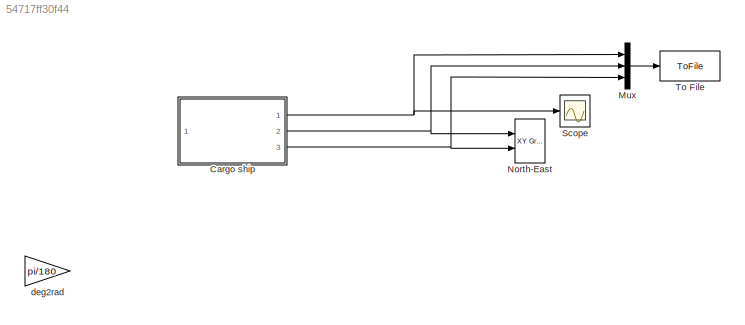
MODEL slx_54717ff30f44
KIND model
CONFIG AbsTol = auto
CONFIG EnableMultiTasking = on
CONFIG FixedStep = auto
CONFIG MaxStep = auto
CONFIG MinStep = auto
CONFIG RelTol = 1e-3
CONFIG SampleTimeConstraint = Unconstrained
CONFIG Solver = ode45
CONFIG SolverName = ode45
CONFIG StartTime = 0.0
CONFIG StopTime = inf
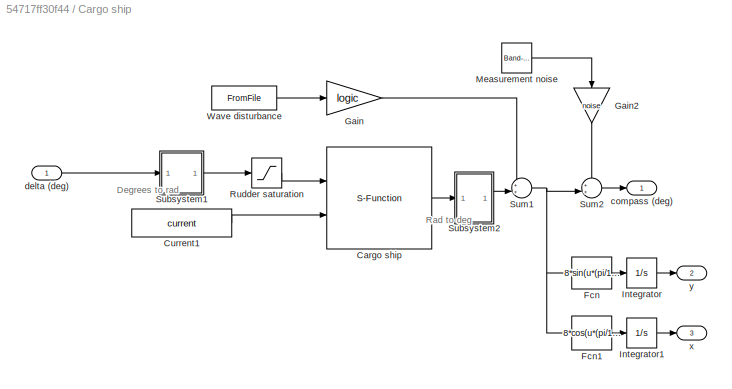
BLOCK [SubSystem] Cargo ship
  Ports = [1, 3]
  RequestExecContextInheritance = off
  Variant = off
BLOCK [S-Function] Cargo ship/Cargo ship
  EnableBusSupport = off
  FunctionName = Cargoship
  Ports = [2, 1]
  SFcnIsStateOwnerBlock = off
  SFunctionDeploymentMode = off
BLOCK [Constant] Cargo ship/Current1
  Value = current
BLOCK [Fcn] Cargo ship/Fcn
  Expr = 8*sin(u*(pi/180))
BLOCK [Fcn] Cargo ship/Fcn1
  Expr = 8*cos(u*(pi/180))
BLOCK [Gain] Cargo ship/Gain
  Gain = logic
BLOCK [Gain] Cargo ship/Gain2
  Gain = noise
BLOCK [Integrator] Cargo ship/Integrator
  Ports = [1, 1]
BLOCK [Integrator] Cargo ship/Integrator1
  Ports = [1, 1]
BLOCK [Reference] Cargo ship/Measurement noise  REF=simulink/Sources/Band-Limited
White Noise
  Ports = [0, 1]
  SourceBlock = simulink/Sources/Band-Limited\nWhite Noise
  SourceProductBaseCode = SL
  SourceProductName = Simulink
  SourceType = Band-Limited White Noise.
BLOCK [Saturate] Cargo ship/Rudder saturation
  InputPortMap = u0
  LowerLimit = -45*(pi/180)
  Ports = [1, 1]
  UpperLimit = 45*(pi/180)
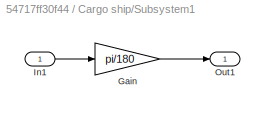
BLOCK [SubSystem] Cargo ship/Subsystem1
  Ports = [1, 1]
  RequestExecContextInheritance = off
  Variant = off
BLOCK [Gain] Cargo ship/Subsystem1/Gain
  Gain = pi/180
BLOCK [Inport] Cargo ship/Subsystem1/In1
  IconDisplay = Port number
BLOCK [Outport] Cargo ship/Subsystem1/Out1
  IconDisplay = Port number
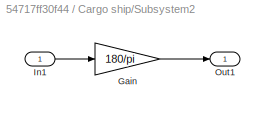
BLOCK [SubSystem] Cargo ship/Subsystem2
  Ports = [1, 1]
  RequestExecContextInheritance = off
  Variant = off
BLOCK [Gain] Cargo ship/Subsystem2/Gain
  Gain = 180/pi
BLOCK [Inport] Cargo ship/Subsystem2/In1
  IconDisplay = Port number
BLOCK [Outport] Cargo ship/Subsystem2/Out1
  IconDisplay = Port number
BLOCK [Sum] Cargo ship/Sum1
  IconShape = round
  InputSameDT = off
  Inputs = ++|
  OutDataTypeStr = Inherit: Inherit via internal rule
  Ports = [2, 1]
BLOCK [Sum] Cargo ship/Sum2
  IconShape = round
  InputSameDT = off
  Inputs = ++|
  OutDataTypeStr = Inherit: Inherit via internal rule
  Ports = [2, 1]
BLOCK [FromFile] Cargo ship/Wave disturbance
  FileName = wave.mat
  SampleTime = 0
BLOCK [Outport] Cargo ship/compass (deg)
  IconDisplay = Port number
BLOCK [Inport] Cargo ship/delta (deg)
  IconDisplay = Port number
BLOCK [Outport] Cargo ship/x
  IconDisplay = Port number
  Port = 3
BLOCK [Outport] Cargo ship/y
  IconDisplay = Port number
  Port = 2
BLOCK [Mux] Mux
  DisplayOption = bar
  Inputs = 3
  Ports = [3, 1]
BLOCK [Reference] North-East  REF=simulink/Sinks/XY Graph
  Ports = [2]
  SourceBlock = simulink/Sinks/XY Graph
  SourceProductBaseCode = SL
  SourceProductName = Simulink
  SourceType = XY scope.
BLOCK [Scope] Scope
  NumInputPorts = 1
  Ports = [1]
  ScopeSpecificationString = Simulink.scopes.TimeScopeBlockCfg('CurrentConfiguration', extmgr.ConfigurationSet(extmgr.Configuration('Core','General UI',true),extmgr.Configuration('Core','Source UI',true),extmgr.Configuration('Sources','WiredSimulink',true,'DataLoggingSaveFormat','StructureWithTime','DataLoggingLimitDataPoints',true,'DataLoggingDecimation','1','DataLoggingDecimateData',true),extmgr.Configuration('Visuals','Tim...<+1650ch>
BLOCK [ToFile] To File
  Filename = data.mat
  MatrixName = data
  Ports = [1]
BLOCK [Gain] deg2rad
  Commented = on
  Gain = pi/180
  OutDataTypeStr = Inherit: Inherit via internal rule
  ParamDataTypeStr = Inherit: Inherit via internal rule
  SaturateOnIntegerOverflow = off
ANNOTATION Cargo ship: Degrees to rad
ANNOTATION Cargo ship: Rad to deg
LINE Cargo ship/Cargo ship:1 -> Cargo ship/Subsystem2:1
LINE Cargo ship/Current1:1 -> Cargo ship/Cargo ship:2
LINE Cargo ship/Fcn1:1 -> Cargo ship/Integrator1:1
LINE Cargo ship/Fcn:1 -> Cargo ship/Integrator:1
LINE Cargo ship/Gain2:1 -> Cargo ship/Sum2:1
LINE Cargo ship/Gain:1 -> Cargo ship/Sum1:1
LINE Cargo ship/Integrator1:1 -> Cargo ship/x:1
LINE Cargo ship/Integrator:1 -> Cargo ship/y:1
LINE Cargo ship/Measurement noise:1 -> Cargo ship/Gain2:1
LINE Cargo ship/Rudder saturation:1 -> Cargo ship/Cargo ship:1
LINE Cargo ship/Subsystem1/Gain:1 -> Cargo ship/Subsystem1/Out1:1
LINE Cargo ship/Subsystem1/In1:1 -> Cargo ship/Subsystem1/Gain:1
LINE Cargo ship/Subsystem1:1 -> Cargo ship/Rudder saturation:1
LINE Cargo ship/Subsystem2/Gain:1 -> Cargo ship/Subsystem2/Out1:1
LINE Cargo ship/Subsystem2/In1:1 -> Cargo ship/Subsystem2/Gain:1
LINE Cargo ship/Subsystem2:1 -> Cargo ship/Sum1:2
NET Cargo ship/Sum1:1 -> Cargo ship/Fcn1:1, Cargo ship/Fcn:1, Cargo ship/Sum2:2
LINE Cargo ship/Sum2:1 -> Cargo ship/compass (deg):1
LINE Cargo ship/Wave disturbance:1 -> Cargo ship/Gain:1
LINE Cargo ship/delta (deg):1 -> Cargo ship/Subsystem1:1
NET Cargo ship:1 -> Mux:1, Scope:1
NET Cargo ship:2 -> Mux:2, North-East:1
NET Cargo ship:3 -> Mux:3, North-East:2
LINE Mux:1 -> To File:1
note: NET lines group one-source signal fan-out (src -> all destinations, sorted); 1:1 wires keep LINE
